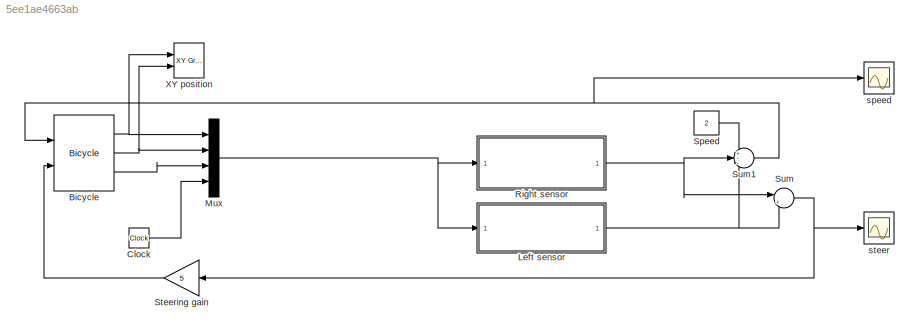
MODEL slx_5ee1ae4663ab
KIND model
CONFIG AbsTol = auto
CONFIG EnableMultiTasking = on
CONFIG FixedStep = auto
CONFIG MaxStep = auto
CONFIG MinStep = auto
CONFIG RelTol = 1e-3
CONFIG SampleTimeConstraint = Unconstrained
CONFIG SolverName = VariableStepAuto
CONFIG StartTime = 0.0
CONFIG StopTime = 200
BLOCK [Reference] Bicycle  REF=roblocks/Vehicles/Bicycle  (lib defined in mdl_2a292b13c81b, mdl_69400f8cfe22, +12 more)
  Ports = [2, 3]
  SourceBlock = roblocks/Vehicles/Bicycle
BLOCK [Clock] Clock
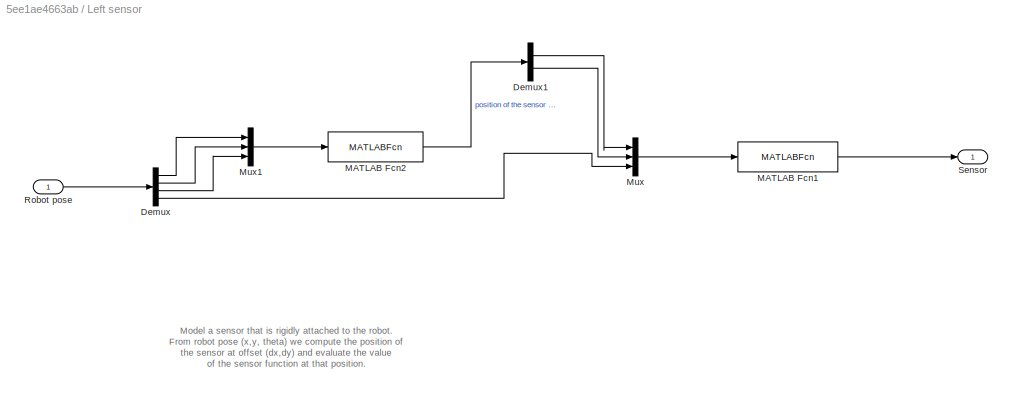
BLOCK [SubSystem] Left sensor
  Ports = [1, 1]
  RequestExecContextInheritance = off
BLOCK [Demux] Left sensor/Demux
  Ports = [1, 4]
BLOCK [Demux] Left sensor/Demux1
  Outputs = 2
  Ports = [1, 2]
BLOCK [MATLABFcn] Left sensor/MATLAB Fcn1
  MATLABFcn = sensorfunc(u(1), u(2), u(3));
  OutputDimensions = 1
  Ports = [1, 1]
BLOCK [MATLABFcn] Left sensor/MATLAB Fcn2
  MATLABFcn = SE2(u)*[dx; dy]
  Ports = [1, 1]
BLOCK [Mux] Left sensor/Mux
  DisplayOption = bar
  Inputs = 3
  Ports = [3, 1]
BLOCK [Mux] Left sensor/Mux1
  DisplayOption = bar
  Inputs = 3
  Ports = [3, 1]
BLOCK [Inport] Left sensor/Robot pose
BLOCK [Outport] Left sensor/Sensor
BLOCK [Mux] Mux
  DisplayOption = bar
  Ports = [4, 1]
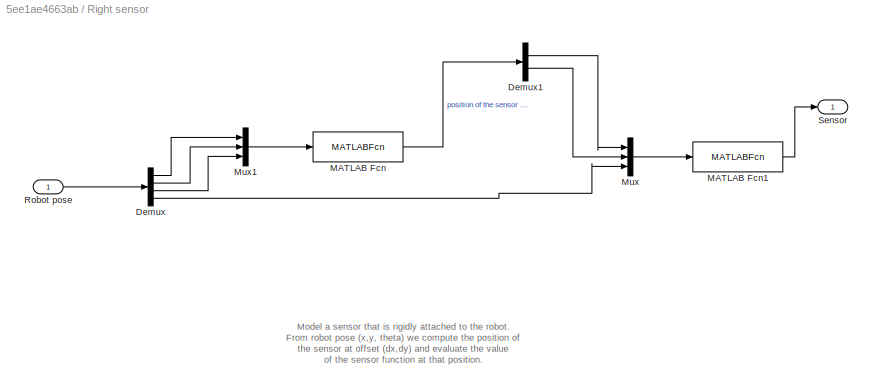
BLOCK [SubSystem] Right sensor
  Ports = [1, 1]
  RequestExecContextInheritance = off
BLOCK [Demux] Right sensor/Demux
  Ports = [1, 4]
BLOCK [Demux] Right sensor/Demux1
  Outputs = 2
  Ports = [1, 2]
BLOCK [MATLABFcn] Right sensor/MATLAB Fcn
  MATLABFcn = SE2(u)*[dx; dy]
  Ports = [1, 1]
BLOCK [MATLABFcn] Right sensor/MATLAB Fcn1
  MATLABFcn = sensorfunc(u(1), u(2), u(3));
  OutputDimensions = 1
  Ports = [1, 1]
BLOCK [Mux] Right sensor/Mux
  DisplayOption = bar
  Inputs = 3
  Ports = [3, 1]
BLOCK [Mux] Right sensor/Mux1
  DisplayOption = bar
  Inputs = 3
  Ports = [3, 1]
BLOCK [Inport] Right sensor/Robot pose
BLOCK [Outport] Right sensor/Sensor
BLOCK [Constant] Speed
  Value = 2
BLOCK [Gain] Steering gain
  Gain = 5
BLOCK [Sum] Sum
  Inputs = |+-
  Ports = [2, 1]
BLOCK [Sum] Sum1
  Inputs = +--
  Ports = [3, 1]
BLOCK [Reference] XY position  REF=simulink/Sinks/XY Graph
  Ports = [2]
  SourceBlock = simulink/Sinks/XY Graph
  SourceProductBaseCode = SL
  SourceType = XY scope.
BLOCK [Scope] speed
  Floating = off
  NumInputPorts = 1
  Ports = [1]
  ScopeSpecificationString = Simulink.scopes.TimeScopeBlockCfg('CurrentConfiguration', extmgr.ConfigurationSet(extmgr.Configuration('Core','General UI',true),extmgr.Configuration('Core','Source UI',true),extmgr.Configuration('Sources','WiredSimulink',true,'DataLoggingVariableName','ScopeData1','DataLoggingSaveFormat','StructureWithTime','DataLoggingLimitDataPoints',true,'DataLoggingDecimation','1'),extmgr.Configuration('Visua...<+1637ch>
BLOCK [Scope] steer
  Floating = off
  NumInputPorts = 1
  Ports = [1]
  ScopeSpecificationString = Simulink.scopes.TimeScopeBlockCfg('CurrentConfiguration', extmgr.ConfigurationSet(extmgr.Configuration('Core','General UI',true),extmgr.Configuration('Core','Source UI',true),extmgr.Configuration('Sources','WiredSimulink',true,'DataLoggingSaveFormat','StructureWithTime','DataLoggingLimitDataPoints',true,'DataLoggingDecimation','1'),extmgr.Configuration('Visuals','Time Domain',true,'SerializedDispl...<+1596ch>
ANNOTATION Left sensor: Model a sensor that is rigidly attached to the robot. From robot pose (x,y, theta) we compute the position of the sensor at offset (dx,dy) and evaluate the value of the sensor function at that position.
ANNOTATION Right sensor: Model a sensor that is rigidly attached to the robot. From robot pose (x,y, theta) we compute the position of the sensor at offset (dx,dy) and evaluate the value of the sensor function at that position.
NET Bicycle:1 -> Mux:1, XY position:1
NET Bicycle:2 -> Mux:2, XY position:2
LINE Bicycle:3 -> Mux:3
LINE Clock:1 -> Mux:4
LINE Left sensor/Demux1:1 -> Left sensor/Mux:1
LINE Left sensor/Demux1:2 -> Left sensor/Mux:2
LINE Left sensor/Demux:1 -> Left sensor/Mux1:1
LINE Left sensor/Demux:2 -> Left sensor/Mux1:2
LINE Left sensor/Demux:3 -> Left sensor/Mux1:3
LINE Left sensor/Demux:4 -> Left sensor/Mux:3
LINE Left sensor/MATLAB Fcn1:1 -> Left sensor/Sensor:1
LINE Left sensor/MATLAB Fcn2:1 -> Left sensor/Demux1:1
LINE Left sensor/Mux1:1 -> Left sensor/MATLAB Fcn2:1
LINE Left sensor/Mux:1 -> Left sensor/MATLAB Fcn1:1
LINE Left sensor/Robot pose:1 -> Left sensor/Demux:1
NET Left sensor:1 -> Sum1:3, Sum:2
NET Mux:1 -> Left sensor:1, Right sensor:1
LINE Right sensor/Demux1:1 -> Right sensor/Mux:1
LINE Right sensor/Demux1:2 -> Right sensor/Mux:2
LINE Right sensor/Demux:1 -> Right sensor/Mux1:1
LINE Right sensor/Demux:2 -> Right sensor/Mux1:2
LINE Right sensor/Demux:3 -> Right sensor/Mux1:3
LINE Right sensor/Demux:4 -> Right sensor/Mux:3
LINE Right sensor/MATLAB Fcn1:1 -> Right sensor/Sensor:1
LINE Right sensor/MATLAB Fcn:1 -> Right sensor/Demux1:1
LINE Right sensor/Mux1:1 -> Right sensor/MATLAB Fcn:1
LINE Right sensor/Mux:1 -> Right sensor/MATLAB Fcn1:1
LINE Right sensor/Robot pose:1 -> Right sensor/Demux:1
NET Right sensor:1 -> Sum1:2, Sum:1
LINE Speed:1 -> Sum1:1
LINE Steering gain:1 -> Bicycle:2
NET Sum1:1 -> Bicycle:1, speed:1
NET Sum:1 -> Steering gain:1, steer:1
note: NET lines group one-source signal fan-out (src -> all destinations, sorted); 1:1 wires keep LINE
